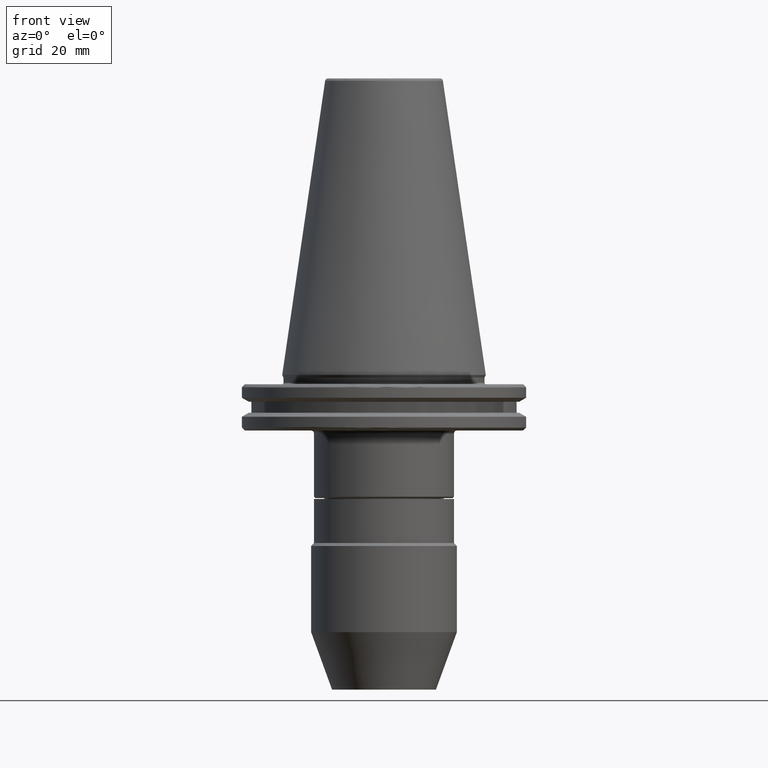
[diagram: clean part render]
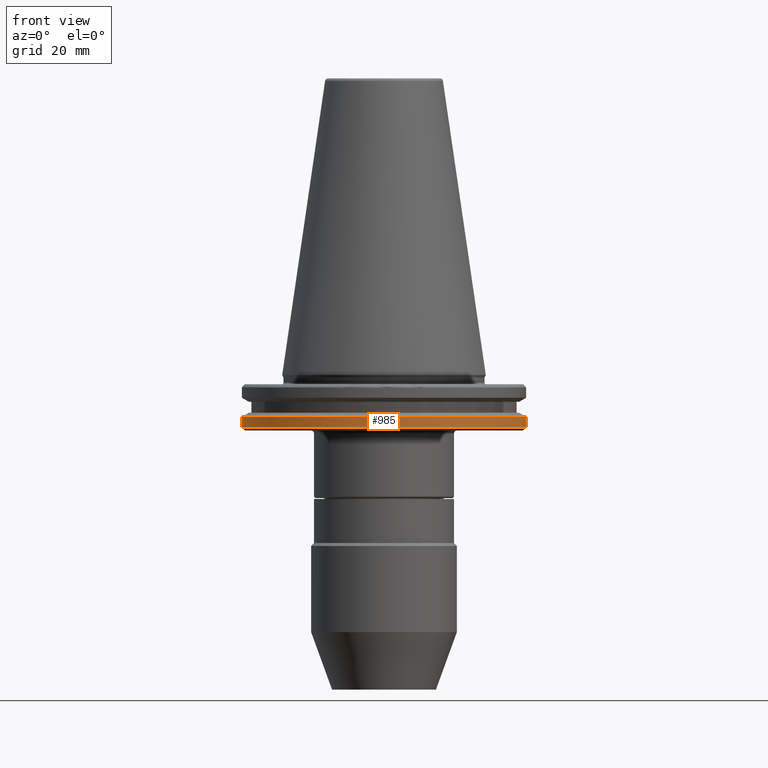
[diagram: same view with one face highlighted and labeled with its STEP entity id]
A machine part, front view. The second image highlights one B-rep face of the part: STEP entity #985.
In plain terms, the highlighted cylindrical surface (partial cylindrical patch) has radius 48.75 mm, axis along (0, 0, 1).
Its self-contained STEP definition (entity closure, byte-faithful):
#229 = DIRECTION ( 'NONE',  ( -0.0000000000000000000, -0.0000000000000000000, -1.000000000000000000 ) ) ;
#593 = VERTEX_POINT ( 'NONE', #1519 ) ;
#607 = DIRECTION ( 'NONE',  ( 0.0000000000000000000, 0.0000000000000000000, 1.000000000000000000 ) ) ;
#640 = CARTESIAN_POINT ( 'NONE',  ( -48.75000000000000000, 5.970153145843347100E-015, 113.5216080541959500 ) ) ;
#681 = EDGE_CURVE ( 'NONE', #3394, #771, #854, .T. ) ;
#719 = CARTESIAN_POINT ( 'NONE',  ( 48.75000000000001400, 0.0000000000000000000, -14.34759526419166200 ) ) ;
#723 = EDGE_CURVE ( 'NONE', #593, #1486, #3448, .T. ) ;
#765 = DIRECTION ( 'NONE',  ( 1.000000000000000000, 0.0000000000000000000, 0.0000000000000000000 ) ) ;
#771 = VERTEX_POINT ( 'NONE', #719 ) ;
#780 = CIRCLE ( 'NONE', #2581, 48.75000000000000000 ) ;
#854 = LINE ( 'NONE', #3206, #2228 ) ;
#890 = FACE_OUTER_BOUND ( 'NONE', #2587, .T. ) ;
#985 = ADVANCED_FACE ( 'NONE', ( #890 ), #2079, .T. ) ;
#998 = CIRCLE ( 'NONE', #2120, 48.75000000000000000 ) ;
#1004 = DIRECTION ( 'NONE',  ( -1.000000000000000000, 0.0000000000000000000, 0.0000000000000000000 ) ) ;
#1015 = DIRECTION ( 'NONE',  ( -0.0000000000000000000, -0.0000000000000000000, -1.000000000000000000 ) ) ;
#1023 = CARTESIAN_POINT ( 'NONE',  ( 48.75000000000000000, 0.0000000000000000000, -17.93431457505076300 ) ) ;
#1027 = CARTESIAN_POINT ( 'NONE',  ( 0.0000000000000000000, 0.0000000000000000000, -17.93431457505076300 ) ) ;
#1053 = DIRECTION ( 'NONE',  ( 0.0000000000000000000, 0.0000000000000000000, 1.000000000000000000 ) ) ;
#1107 = DIRECTION ( 'NONE',  ( -1.000000000000000000, 0.0000000000000000000, 0.0000000000000000000 ) ) ;
#1120 = DIRECTION ( 'NONE',  ( -0.0000000000000000000, -0.0000000000000000000, 1.000000000000000000 ) ) ;
#1127 = CARTESIAN_POINT ( 'NONE',  ( 0.0000000000000000000, 0.0000000000000000000, -14.34759526419166200 ) ) ;
#1214 = CARTESIAN_POINT ( 'NONE',  ( 0.0000000000000000000, 0.0000000000000000000, 113.5216080541959500 ) ) ;
#1400 = CARTESIAN_POINT ( 'NONE',  ( 46.87302845420868600, -13.39707817141269400, -17.93431457505076300 ) ) ;
#1486 = VERTEX_POINT ( 'NONE', #2456 ) ;
#1519 = CARTESIAN_POINT ( 'NONE',  ( -48.75000000000000000, 5.970153145843347100E-015, -17.93431457505076300 ) ) ;
#1630 = DIRECTION ( 'NONE',  ( 1.000000000000000000, 0.0000000000000000000, 0.0000000000000000000 ) ) ;
#1641 = DIRECTION ( 'NONE',  ( 0.0000000000000000000, 0.0000000000000000000, 1.000000000000000000 ) ) ;
#1653 = CARTESIAN_POINT ( 'NONE',  ( 0.0000000000000000000, 0.0000000000000000000, -17.93431457505076300 ) ) ;
#1657 = CIRCLE ( 'NONE', #2104, 48.75000000000000000 ) ;
#1702 = ORIENTED_EDGE ( 'NONE', *, *, #723, .F. ) ;
#1747 = ORIENTED_EDGE ( 'NONE', *, *, #2160, .F. ) ;
#1836 = ORIENTED_EDGE ( 'NONE', *, *, #2736, .T. ) ;
#1844 = CARTESIAN_POINT ( 'NONE',  ( 0.0000000000000000000, 0.0000000000000000000, -17.93431457505076300 ) ) ;
#1924 = ORIENTED_EDGE ( 'NONE', *, *, #3363, .F. ) ;
#2079 = CYLINDRICAL_SURFACE ( 'NONE', #2601, 48.75000000000000000 ) ;
#2096 = VERTEX_POINT ( 'NONE', #1400 ) ;
#2104 = AXIS2_PLACEMENT_3D ( 'NONE', #1653, #1641, #1630 ) ;
#2118 = DIRECTION ( 'NONE',  ( -1.000000000000000000, 0.0000000000000000000, 0.0000000000000000000 ) ) ;
#2120 = AXIS2_PLACEMENT_3D ( 'NONE', #1844, #229, #2118 ) ;
#2160 = EDGE_CURVE ( 'NONE', #1486, #771, #2909, .T. ) ;
#2209 = EDGE_CURVE ( 'NONE', #3394, #2096, #780, .T. ) ;
#2228 = VECTOR ( 'NONE', #3073, 1000.000000000000000 ) ;
#2456 = CARTESIAN_POINT ( 'NONE',  ( -48.75000000000001400, 5.970153145843347900E-015, -14.34759526419166200 ) ) ;
#2581 = AXIS2_PLACEMENT_3D ( 'NONE', #1027, #1015, #1004 ) ;
#2587 = EDGE_LOOP ( 'NONE', ( #1702, #1924, #1836, #3145, #2703, #1747 ) ) ;
#2601 = AXIS2_PLACEMENT_3D ( 'NONE', #1214, #1053, #765 ) ;
#2703 = ORIENTED_EDGE ( 'NONE', *, *, #681, .T. ) ;
#2718 = VERTEX_POINT ( 'NONE', #3013 ) ;
#2736 = EDGE_CURVE ( 'NONE', #2718, #2096, #1657, .T. ) ;
#2758 = VECTOR ( 'NONE', #607, 1000.000000000000000 ) ;
#2909 = CIRCLE ( 'NONE', #3129, 48.75000000000000000 ) ;
#3013 = CARTESIAN_POINT ( 'NONE',  ( -46.83796378645139000, -13.51915856623735300, -17.93431457505076300 ) ) ;
#3073 = DIRECTION ( 'NONE',  ( 0.0000000000000000000, 0.0000000000000000000, 1.000000000000000000 ) ) ;
#3129 = AXIS2_PLACEMENT_3D ( 'NONE', #1127, #1120, #1107 ) ;
#3145 = ORIENTED_EDGE ( 'NONE', *, *, #2209, .F. ) ;
#3206 = CARTESIAN_POINT ( 'NONE',  ( 48.75000000000000000, 0.0000000000000000000, 113.5216080541959500 ) ) ;
#3363 = EDGE_CURVE ( 'NONE', #2718, #593, #998, .T. ) ;
#3394 = VERTEX_POINT ( 'NONE', #1023 ) ;
#3448 = LINE ( 'NONE', #640, #2758 ) ;